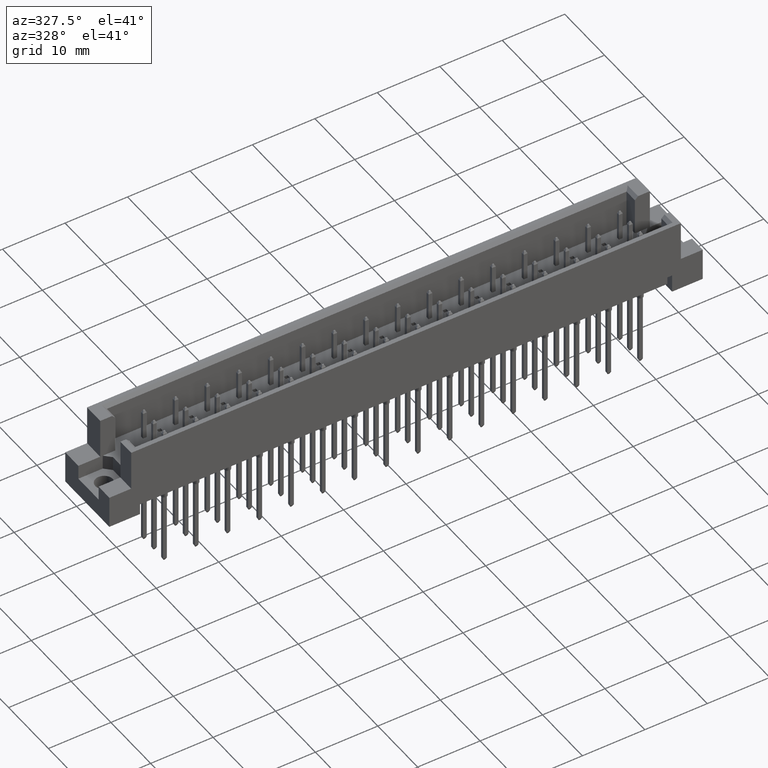
[diagram: clean part render]
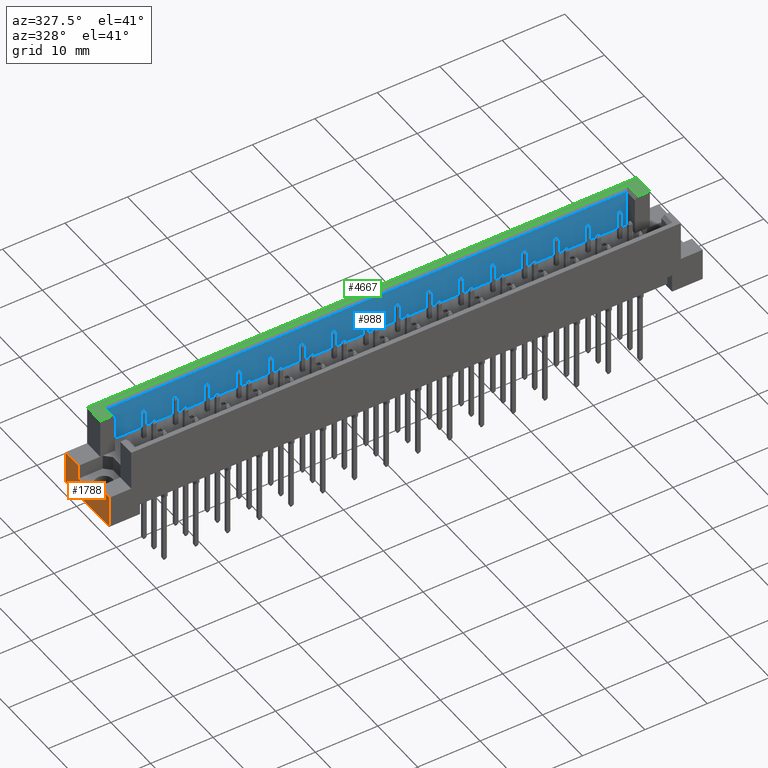
[diagram: same view with three faces highlighted in distinct colors, each labeled with its STEP entity id]
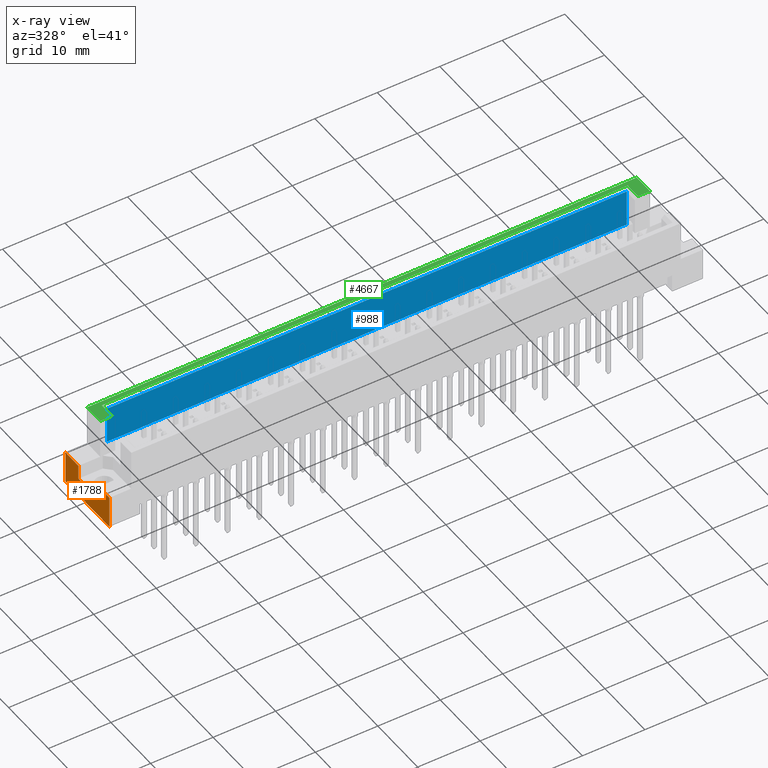
[diagram: x-ray of the same camera — body ghosted, the three highlighted faces saturated]
A machine part, auxiliary view with three faces highlighted in distinct colors.
The next image is the same camera in x-ray (body ghosted, the three faces saturated) — at least one of them is partly hidden behind the body in this view.
Their STEP definitions:

[orange] entity #1788 — the highlighted planar face has unit normal (1, 0, 0).
#88 = DIRECTION ( 'NONE',  ( 0.0000000000000000000, -1.000000000000000000, 0.0000000000000000000 ) ) ;
#492 = ORIENTED_EDGE ( 'NONE', *, *, #8341, .T. ) ;
#518 = EDGE_CURVE ( 'NONE', #7837, #11262, #16835, .T. ) ;
#548 = DIRECTION ( 'NONE',  ( 0.0000000000000000000, -1.000000000000000000, 0.0000000000000000000 ) ) ;
#613 = CARTESIAN_POINT ( 'NONE',  ( -47.50000000000000000, 11.09999999999999964, 0.0000000000000000000 ) ) ;
#962 = EDGE_CURVE ( 'NONE', #15250, #16362, #11765, .T. ) ;
#1319 = CARTESIAN_POINT ( 'NONE',  ( -47.50000000000000000, 0.0000000000000000000, 5.199999999999992184 ) ) ;
#1788 = ADVANCED_FACE ( 'NONE', ( #12614 ), #4483, .F. ) ;
#2360 = CARTESIAN_POINT ( 'NONE',  ( -47.50000000000000000, 2.709999999999974651, 5.199999999999992184 ) ) ;
#2692 = LINE ( 'NONE', #2870, #4061 ) ;
#2870 = CARTESIAN_POINT ( 'NONE',  ( -47.50000000000000000, 11.09999999999999964, 0.0000000000000000000 ) ) ;
#2955 = CARTESIAN_POINT ( 'NONE',  ( -47.50000000000000000, 11.09999999999999964, 5.199999999999992184 ) ) ;
#3107 = CARTESIAN_POINT ( 'NONE',  ( -47.50000000000000000, 7.789999999999974278, 2.899999999999991918 ) ) ;
#4061 = VECTOR ( 'NONE', #9356, 1000.000000000000000 ) ;
#4217 = CARTESIAN_POINT ( 'NONE',  ( -47.50000000000000000, 7.789999999999974278, 2.899999999999991918 ) ) ;
#4238 = CARTESIAN_POINT ( 'NONE',  ( -47.50000000000000000, 0.0000000000000000000, 0.0000000000000000000 ) ) ;
#4483 = PLANE ( 'NONE',  #15610 ) ;
#4913 = ORIENTED_EDGE ( 'NONE', *, *, #16563, .F. ) ;
#4956 = ORIENTED_EDGE ( 'NONE', *, *, #13062, .T. ) ;
#4974 = CARTESIAN_POINT ( 'NONE',  ( -47.50000000000000000, 0.0000000000000000000, 0.0000000000000000000 ) ) ;
#5202 = CARTESIAN_POINT ( 'NONE',  ( -47.50000000000000000, 2.709999999999974651, 2.899999999999991918 ) ) ;
#5790 = CARTESIAN_POINT ( 'NONE',  ( -47.50000000000000000, 11.09999999999999964, 5.199999999999992184 ) ) ;
#5997 = EDGE_LOOP ( 'NONE', ( #9504, #492, #15624, #10558, #4956, #6847, #4913, #9546 ) ) ;
#6050 = EDGE_CURVE ( 'NONE', #10063, #15250, #14834, .T. ) ;
#6685 = LINE ( 'NONE', #2955, #13477 ) ;
#6847 = ORIENTED_EDGE ( 'NONE', *, *, #518, .T. ) ;
#7837 = VERTEX_POINT ( 'NONE', #4238 ) ;
#8298 = CARTESIAN_POINT ( 'NONE',  ( -47.50000000000000000, 11.09999999999999964, 5.199999999999992184 ) ) ;
#8341 = EDGE_CURVE ( 'NONE', #10063, #10215, #15905, .T. ) ;
#8447 = VECTOR ( 'NONE', #548, 1000.000000000000000 ) ;
#8682 = CARTESIAN_POINT ( 'NONE',  ( -47.50000000000000000, 2.709999999999974651, 2.899999999999991918 ) ) ;
#9195 = VECTOR ( 'NONE', #16983, 1000.000000000000000 ) ;
#9356 = DIRECTION ( 'NONE',  ( 0.0000000000000000000, 0.0000000000000000000, 1.000000000000000000 ) ) ;
#9393 = DIRECTION ( 'NONE',  ( -0.0000000000000000000, -0.0000000000000000000, 1.000000000000000000 ) ) ;
#9504 = ORIENTED_EDGE ( 'NONE', *, *, #6050, .F. ) ;
#9546 = ORIENTED_EDGE ( 'NONE', *, *, #962, .F. ) ;
#9582 = DIRECTION ( 'NONE',  ( 0.0000000000000000000, -1.000000000000000000, 0.0000000000000000000 ) ) ;
#9801 = CARTESIAN_POINT ( 'NONE',  ( -47.50000000000000000, 7.789999999999974278, 2.899999999999991918 ) ) ;
#9919 = CARTESIAN_POINT ( 'NONE',  ( -47.50000000000000000, 11.09999999999999964, 0.0000000000000000000 ) ) ;
#10063 = VERTEX_POINT ( 'NONE', #3107 ) ;
#10215 = VERTEX_POINT ( 'NONE', #12718 ) ;
#10236 = DIRECTION ( 'NONE',  ( 0.0000000000000000000, 0.0000000000000000000, 1.000000000000000000 ) ) ;
#10551 = VECTOR ( 'NONE', #9393, 1000.000000000000000 ) ;
#10558 = ORIENTED_EDGE ( 'NONE', *, *, #16483, .F. ) ;
#10877 = LINE ( 'NONE', #8298, #14854 ) ;
#11262 = VERTEX_POINT ( 'NONE', #1319 ) ;
#11765 = LINE ( 'NONE', #5202, #9195 ) ;
#12441 = DIRECTION ( 'NONE',  ( 1.000000000000000000, 0.0000000000000000000, 0.0000000000000000000 ) ) ;
#12614 = FACE_OUTER_BOUND ( 'NONE', #5997, .T. ) ;
#12718 = CARTESIAN_POINT ( 'NONE',  ( -47.50000000000000000, 7.789999999999974278, 5.199999999999992184 ) ) ;
#12802 = VERTEX_POINT ( 'NONE', #5790 ) ;
#13062 = EDGE_CURVE ( 'NONE', #16637, #7837, #14589, .T. ) ;
#13288 = DIRECTION ( 'NONE',  ( -0.0000000000000000000, -1.000000000000000000, -0.0000000000000000000 ) ) ;
#13477 = VECTOR ( 'NONE', #88, 1000.000000000000000 ) ;
#13605 = VECTOR ( 'NONE', #10236, 1000.000000000000000 ) ;
#13742 = DIRECTION ( 'NONE',  ( 0.0000000000000000000, 0.0000000000000000000, -1.000000000000000000 ) ) ;
#14198 = EDGE_CURVE ( 'NONE', #12802, #10215, #10877, .T. ) ;
#14589 = LINE ( 'NONE', #15638, #16220 ) ;
#14834 = LINE ( 'NONE', #9801, #8447 ) ;
#14854 = VECTOR ( 'NONE', #9582, 1000.000000000000000 ) ;
#15250 = VERTEX_POINT ( 'NONE', #8682 ) ;
#15610 = AXIS2_PLACEMENT_3D ( 'NONE', #9919, #12441, #13742 ) ;
#15624 = ORIENTED_EDGE ( 'NONE', *, *, #14198, .F. ) ;
#15638 = CARTESIAN_POINT ( 'NONE',  ( -47.50000000000000000, 11.09999999999999964, 0.0000000000000000000 ) ) ;
#15905 = LINE ( 'NONE', #4217, #10551 ) ;
#16220 = VECTOR ( 'NONE', #13288, 1000.000000000000000 ) ;
#16362 = VERTEX_POINT ( 'NONE', #2360 ) ;
#16483 = EDGE_CURVE ( 'NONE', #16637, #12802, #2692, .T. ) ;
#16563 = EDGE_CURVE ( 'NONE', #16362, #11262, #6685, .T. ) ;
#16637 = VERTEX_POINT ( 'NONE', #613 ) ;
#16835 = LINE ( 'NONE', #4974, #13605 ) ;
#16983 = DIRECTION ( 'NONE',  ( -0.0000000000000000000, -0.0000000000000000000, 1.000000000000000000 ) ) ;

[blue] entity #988 — the highlighted planar face has unit normal (0, -1, 0).
#988 = ADVANCED_FACE ( 'NONE', ( #6586 ), #14285, .T. ) ;
#1293 = CARTESIAN_POINT ( 'NONE',  ( 41.60000000000000142, 9.899999999999984368, 5.199999999999992184 ) ) ;
#2326 = CARTESIAN_POINT ( 'NONE',  ( 41.60000000000000142, 9.899999999999984368, 11.09199999999998099 ) ) ;
#2426 = DIRECTION ( 'NONE',  ( 0.0000000000000000000, -1.000000000000000000, 0.0000000000000000000 ) ) ;
#3233 = VECTOR ( 'NONE', #16740, 1000.000000000000000 ) ;
#5282 = DIRECTION ( 'NONE',  ( 0.0000000000000000000, -0.0000000000000000000, -1.000000000000000000 ) ) ;
#5477 = VERTEX_POINT ( 'NONE', #12447 ) ;
#5521 = ORIENTED_EDGE ( 'NONE', *, *, #5845, .T. ) ;
#5748 = DIRECTION ( 'NONE',  ( 0.0000000000000000000, 0.0000000000000000000, 1.000000000000000000 ) ) ;
#5845 = EDGE_CURVE ( 'NONE', #12393, #5477, #12505, .T. ) ;
#6528 = EDGE_CURVE ( 'NONE', #14968, #5477, #10641, .T. ) ;
#6586 = FACE_OUTER_BOUND ( 'NONE', #7863, .T. ) ;
#6774 = DIRECTION ( 'NONE',  ( 0.0000000000000000000, 0.0000000000000000000, 1.000000000000000000 ) ) ;
#6791 = LINE ( 'NONE', #9278, #7652 ) ;
#7279 = AXIS2_PLACEMENT_3D ( 'NONE', #1293, #2426, #5282 ) ;
#7409 = CARTESIAN_POINT ( 'NONE',  ( -41.60000000000000142, 9.899999999999984368, 11.09199999999999164 ) ) ;
#7652 = VECTOR ( 'NONE', #5748, 1000.000000000000000 ) ;
#7751 = ORIENTED_EDGE ( 'NONE', *, *, #6528, .F. ) ;
#7836 = VECTOR ( 'NONE', #12863, 1000.000000000000000 ) ;
#7863 = EDGE_LOOP ( 'NONE', ( #15332, #5521, #7751, #15246 ) ) ;
#8920 = VECTOR ( 'NONE', #6774, 1000.000000000000000 ) ;
#9278 = CARTESIAN_POINT ( 'NONE',  ( 41.60000000000000142, 9.899999999999984368, 5.199999999999992184 ) ) ;
#10145 = CARTESIAN_POINT ( 'NONE',  ( 41.60000000000000142, 9.899999999999984368, 5.199999999999992184 ) ) ;
#10443 = VERTEX_POINT ( 'NONE', #11577 ) ;
#10478 = LINE ( 'NONE', #10145, #3233 ) ;
#10641 = LINE ( 'NONE', #16118, #8920 ) ;
#11577 = CARTESIAN_POINT ( 'NONE',  ( 41.60000000000000142, 9.899999999999984368, 5.199999999999992184 ) ) ;
#11967 = CARTESIAN_POINT ( 'NONE',  ( -41.60000000000000142, 9.899999999999984368, 5.199999999999992184 ) ) ;
#12393 = VERTEX_POINT ( 'NONE', #2326 ) ;
#12447 = CARTESIAN_POINT ( 'NONE',  ( -41.60000000000000142, 9.899999999999984368, 11.09199999999999164 ) ) ;
#12505 = LINE ( 'NONE', #7409, #7836 ) ;
#12863 = DIRECTION ( 'NONE',  ( -1.000000000000000000, 0.0000000000000000000, 1.278217298088173739E-16 ) ) ;
#13707 = EDGE_CURVE ( 'NONE', #10443, #12393, #6791, .T. ) ;
#14285 = PLANE ( 'NONE',  #7279 ) ;
#14968 = VERTEX_POINT ( 'NONE', #11967 ) ;
#15246 = ORIENTED_EDGE ( 'NONE', *, *, #16357, .T. ) ;
#15332 = ORIENTED_EDGE ( 'NONE', *, *, #13707, .T. ) ;
#16118 = CARTESIAN_POINT ( 'NONE',  ( -41.60000000000000142, 9.899999999999984368, 5.199999999999992184 ) ) ;
#16357 = EDGE_CURVE ( 'NONE', #14968, #10443, #10478, .T. ) ;
#16740 = DIRECTION ( 'NONE',  ( 1.000000000000000000, -0.0000000000000000000, -0.0000000000000000000 ) ) ;

[green] entity #4667 — the highlighted planar face has unit normal (-0, 0, -1).
#509 = VERTEX_POINT ( 'NONE', #7399 ) ;
#695 = FACE_OUTER_BOUND ( 'NONE', #13822, .T. ) ;
#698 = VERTEX_POINT ( 'NONE', #8251 ) ;
#778 = CARTESIAN_POINT ( 'NONE',  ( -44.00000000000000000, 7.789999999999992042, 11.59999999999999254 ) ) ;
#847 = CARTESIAN_POINT ( 'NONE',  ( 42.10800000000000409, 7.789999999999992042, 11.59999999999998721 ) ) ;
#908 = VECTOR ( 'NONE', #4578, 1000.000000000000000 ) ;
#1114 = CARTESIAN_POINT ( 'NONE',  ( 42.10800000000000409, 10.40799999999999415, 11.59999999999998721 ) ) ;
#1225 = VERTEX_POINT ( 'NONE', #8231 ) ;
#1809 = EDGE_CURVE ( 'NONE', #698, #1225, #11390, .T. ) ;
#1904 = DIRECTION ( 'NONE',  ( -1.000000000000000000, 0.0000000000000000000, 1.278217298088173739E-16 ) ) ;
#2837 = VECTOR ( 'NONE', #15647, 1000.000000000000000 ) ;
#2872 = VERTEX_POINT ( 'NONE', #1114 ) ;
#3411 = EDGE_CURVE ( 'NONE', #509, #698, #16545, .T. ) ;
#3514 = ORIENTED_EDGE ( 'NONE', *, *, #13689, .F. ) ;
#3792 = VERTEX_POINT ( 'NONE', #12105 ) ;
#3922 = DIRECTION ( 'NONE',  ( -0.0000000000000000000, -1.000000000000000000, -0.0000000000000000000 ) ) ;
#4578 = DIRECTION ( 'NONE',  ( 0.0000000000000000000, -1.000000000000000000, 0.0000000000000000000 ) ) ;
#4667 = ADVANCED_FACE ( 'NONE', ( #695 ), #9693, .F. ) ;
#5369 = ORIENTED_EDGE ( 'NONE', *, *, #6742, .F. ) ;
#5428 = EDGE_CURVE ( 'NONE', #1225, #2872, #14415, .T. ) ;
#5952 = ORIENTED_EDGE ( 'NONE', *, *, #5428, .T. ) ;
#5964 = ORIENTED_EDGE ( 'NONE', *, *, #8836, .F. ) ;
#6131 = CARTESIAN_POINT ( 'NONE',  ( -42.10800000000000409, 9.899999999999984368, 11.59999999999999964 ) ) ;
#6152 = DIRECTION ( 'NONE',  ( 1.000000000000000000, 0.0000000000000000000, 0.0000000000000000000 ) ) ;
#6742 = EDGE_CURVE ( 'NONE', #3792, #13103, #16698, .T. ) ;
#7350 = LINE ( 'NONE', #847, #908 ) ;
#7399 = CARTESIAN_POINT ( 'NONE',  ( -44.00000000000000000, 7.789999999999992042, 11.59999999999999254 ) ) ;
#7661 = CARTESIAN_POINT ( 'NONE',  ( 44.00000000000000000, 0.0000000000000000000, 11.59999999999999254 ) ) ;
#7937 = CARTESIAN_POINT ( 'NONE',  ( 41.60000000000000142, 10.40799999999999415, 11.59999999999998721 ) ) ;
#8180 = ORIENTED_EDGE ( 'NONE', *, *, #1809, .T. ) ;
#8231 = CARTESIAN_POINT ( 'NONE',  ( -42.10800000000000409, 10.40799999999999415, 11.59999999999999964 ) ) ;
#8251 = CARTESIAN_POINT ( 'NONE',  ( -42.10800000000000409, 7.789999999999992042, 11.59999999999999254 ) ) ;
#8659 = DIRECTION ( 'NONE',  ( -1.278217298088173739E-16, 0.0000000000000000000, -1.000000000000000000 ) ) ;
#8836 = EDGE_CURVE ( 'NONE', #509, #3792, #15669, .T. ) ;
#9136 = EDGE_CURVE ( 'NONE', #2872, #9479, #7350, .T. ) ;
#9204 = VERTEX_POINT ( 'NONE', #11737 ) ;
#9479 = VERTEX_POINT ( 'NONE', #10501 ) ;
#9595 = CARTESIAN_POINT ( 'NONE',  ( 44.00000000000000000, 7.789999999999992042, 11.59999999999999254 ) ) ;
#9693 = PLANE ( 'NONE',  #12683 ) ;
#10075 = ORIENTED_EDGE ( 'NONE', *, *, #9136, .T. ) ;
#10118 = VECTOR ( 'NONE', #6152, 1000.000000000000000 ) ;
#10501 = CARTESIAN_POINT ( 'NONE',  ( 42.10800000000000409, 7.789999999999992042, 11.59999999999999254 ) ) ;
#11157 = DIRECTION ( 'NONE',  ( 1.000000000000000000, -0.0000000000000000000, -0.0000000000000000000 ) ) ;
#11217 = DIRECTION ( 'NONE',  ( 0.0000000000000000000, 1.000000000000000000, 0.0000000000000000000 ) ) ;
#11390 = LINE ( 'NONE', #6131, #13954 ) ;
#11737 = CARTESIAN_POINT ( 'NONE',  ( 44.00000000000000000, 7.789999999999992042, 11.59999999999999254 ) ) ;
#11929 = DIRECTION ( 'NONE',  ( 0.0000000000000000000, 1.000000000000000000, 0.0000000000000000000 ) ) ;
#12105 = CARTESIAN_POINT ( 'NONE',  ( -44.00000000000000000, 11.09999999999999432, 11.59999999999999254 ) ) ;
#12261 = EDGE_CURVE ( 'NONE', #9479, #9204, #14804, .T. ) ;
#12626 = VECTOR ( 'NONE', #3922, 1000.000000000000000 ) ;
#12683 = AXIS2_PLACEMENT_3D ( 'NONE', #13768, #8659, #1904 ) ;
#13103 = VERTEX_POINT ( 'NONE', #15801 ) ;
#13352 = VECTOR ( 'NONE', #11929, 1000.000000000000000 ) ;
#13391 = VECTOR ( 'NONE', #15986, 1000.000000000000000 ) ;
#13689 = EDGE_CURVE ( 'NONE', #13103, #9204, #14311, .T. ) ;
#13768 = CARTESIAN_POINT ( 'NONE',  ( -47.50000000000000000, 11.09999999999999964, 11.59999999999999964 ) ) ;
#13822 = EDGE_LOOP ( 'NONE', ( #5952, #10075, #14304, #3514, #5369, #5964, #15768, #8180 ) ) ;
#13954 = VECTOR ( 'NONE', #11217, 1000.000000000000000 ) ;
#14304 = ORIENTED_EDGE ( 'NONE', *, *, #12261, .T. ) ;
#14311 = LINE ( 'NONE', #7661, #12626 ) ;
#14415 = LINE ( 'NONE', #7937, #13391 ) ;
#14528 = CARTESIAN_POINT ( 'NONE',  ( -44.00000000000000000, 0.0000000000000000000, 11.59999999999999254 ) ) ;
#14804 = LINE ( 'NONE', #9595, #15362 ) ;
#15362 = VECTOR ( 'NONE', #11157, 1000.000000000000000 ) ;
#15647 = DIRECTION ( 'NONE',  ( 1.000000000000000000, 0.0000000000000000000, -1.278217298088173739E-16 ) ) ;
#15669 = LINE ( 'NONE', #14528, #13352 ) ;
#15768 = ORIENTED_EDGE ( 'NONE', *, *, #3411, .T. ) ;
#15801 = CARTESIAN_POINT ( 'NONE',  ( 44.00000000000000000, 11.09999999999999432, 11.59999999999999254 ) ) ;
#15986 = DIRECTION ( 'NONE',  ( 1.000000000000000000, 0.0000000000000000000, -1.278217298088173739E-16 ) ) ;
#16545 = LINE ( 'NONE', #778, #10118 ) ;
#16698 = LINE ( 'NONE', #16781, #2837 ) ;
#16781 = CARTESIAN_POINT ( 'NONE',  ( -47.50000000000000000, 11.09999999999999964, 11.59999999999999964 ) ) ;